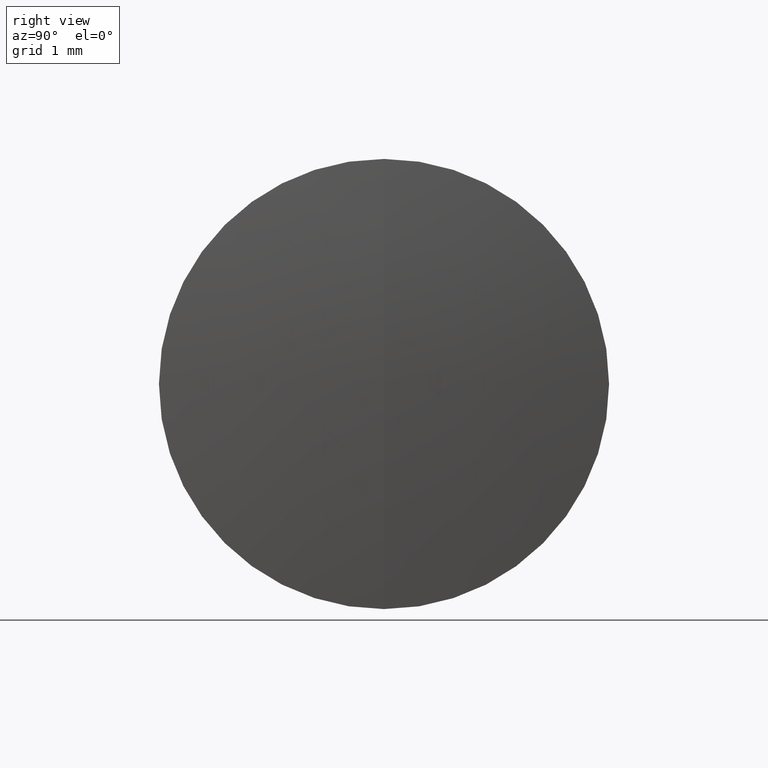
[diagram: clean part render]
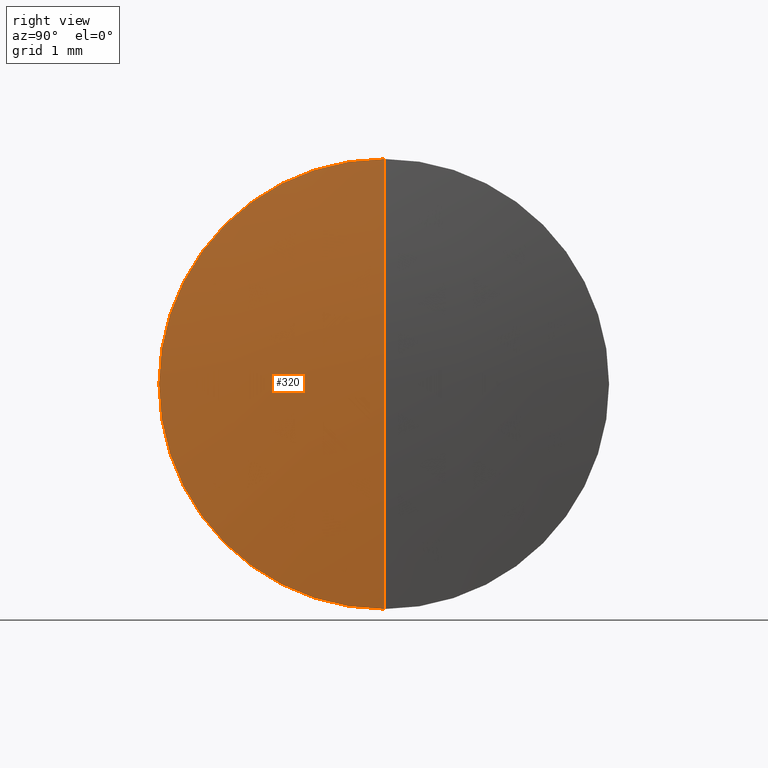
[diagram: same view with one face highlighted and labeled with its STEP entity id]
A machine part, right view. The second image highlights one B-rep face of the part: STEP entity #320.
In plain terms, the highlighted spherical surface has radius 23.88 mm.
Its self-contained STEP definition (entity closure, byte-faithful):
#7 = DIRECTION ( 'NONE',  ( 0.0000000000000000000, 1.000000000000000000, -0.0000000000000000000 ) ) ;
#9 = ORIENTED_EDGE ( 'NONE', *, *, #227, .F. ) ;
#16 = CARTESIAN_POINT ( 'NONE',  ( 3.886022484758548500, 0.0000000000000000000, -1.462228278181939500E-015 ) ) ;
#18 = CARTESIAN_POINT ( 'NONE',  ( 3.754799295365029100, -3.061616997868377200E-016, 2.499999999999995100 ) ) ;
#32 = VERTEX_POINT ( 'NONE', #18 ) ;
#40 = CARTESIAN_POINT ( 'NONE',  ( -19.99397751524145100, 0.0000000000000000000, 0.0000000000000000000 ) ) ;
#44 = AXIS2_PLACEMENT_3D ( 'NONE', #40, #282, #114 ) ;
#62 = EDGE_CURVE ( 'NONE', #287, #32, #333, .T. ) ;
#76 = EDGE_LOOP ( 'NONE', ( #9, #314, #77 ) ) ;
#77 = ORIENTED_EDGE ( 'NONE', *, *, #62, .F. ) ;
#78 = CARTESIAN_POINT ( 'NONE',  ( 3.754799295365029100, 0.0000000000000000000, -2.499999999999995100 ) ) ;
#112 = CIRCLE ( 'NONE', #155, 23.87999999999999900 ) ;
#114 = DIRECTION ( 'NONE',  ( 0.0000000000000000000, 0.0000000000000000000, -1.000000000000000000 ) ) ;
#131 = DIRECTION ( 'NONE',  ( 0.0000000000000000000, -1.000000000000000000, -1.224646799147353200E-016 ) ) ;
#138 = DIRECTION ( 'NONE',  ( 0.0000000000000000000, 0.0000000000000000000, 1.000000000000000000 ) ) ;
#155 = AXIS2_PLACEMENT_3D ( 'NONE', #218, #7, #301 ) ;
#158 = EDGE_CURVE ( 'NONE', #335, #32, #192, .T. ) ;
#169 = CARTESIAN_POINT ( 'NONE',  ( 3.754799295365026900, 0.0000000000000000000, 0.0000000000000000000 ) ) ;
#192 = CIRCLE ( 'NONE', #244, 23.87999999999999900 ) ;
#218 = CARTESIAN_POINT ( 'NONE',  ( -19.99397751524145100, 0.0000000000000000000, 0.0000000000000000000 ) ) ;
#225 = DIRECTION ( 'NONE',  ( -1.000000000000000000, -0.0000000000000000000, -0.0000000000000000000 ) ) ;
#227 = EDGE_CURVE ( 'NONE', #335, #287, #112, .T. ) ;
#233 = SPHERICAL_SURFACE ( 'NONE', #44, 23.87999999999999900 ) ;
#244 = AXIS2_PLACEMENT_3D ( 'NONE', #308, #131, #303 ) ;
#255 = FACE_OUTER_BOUND ( 'NONE', #76, .T. ) ;
#282 = DIRECTION ( 'NONE',  ( -0.0000000000000000000, -1.000000000000000000, -0.0000000000000000000 ) ) ;
#287 = VERTEX_POINT ( 'NONE', #78 ) ;
#301 = DIRECTION ( 'NONE',  ( 0.0000000000000000000, 0.0000000000000000000, 1.000000000000000000 ) ) ;
#303 = DIRECTION ( 'NONE',  ( 0.0000000000000000000, 1.224646799147353000E-016, -1.000000000000000000 ) ) ;
#308 = CARTESIAN_POINT ( 'NONE',  ( -19.99397751524145100, 0.0000000000000000000, 0.0000000000000000000 ) ) ;
#314 = ORIENTED_EDGE ( 'NONE', *, *, #158, .T. ) ;
#319 = AXIS2_PLACEMENT_3D ( 'NONE', #169, #225, #138 ) ;
#320 = ADVANCED_FACE ( 'NONE', ( #255 ), #233, .T. ) ;
#333 = CIRCLE ( 'NONE', #319, 2.499999999999997800 ) ;
#335 = VERTEX_POINT ( 'NONE', #16 ) ;